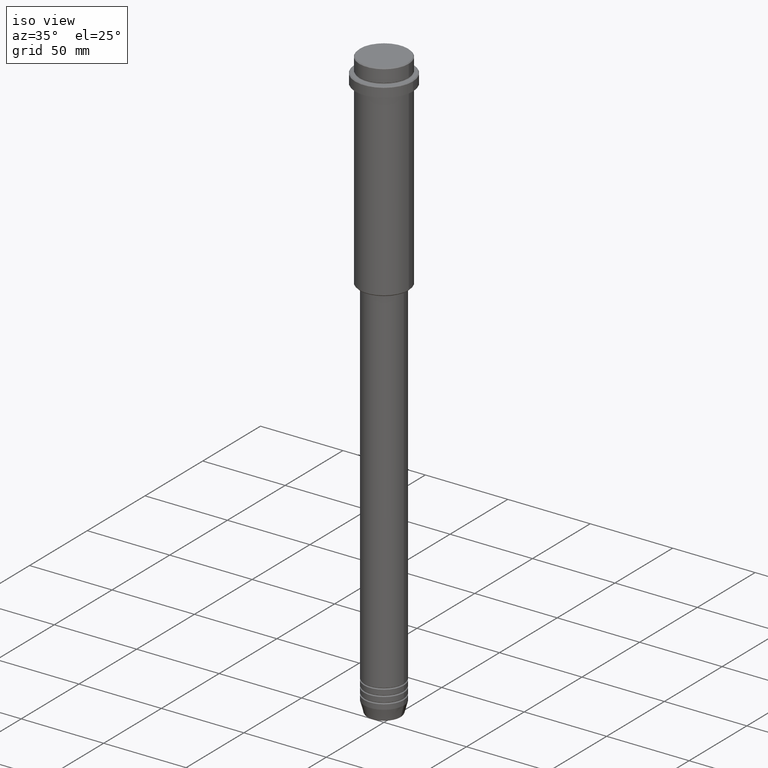
[diagram: clean part render]
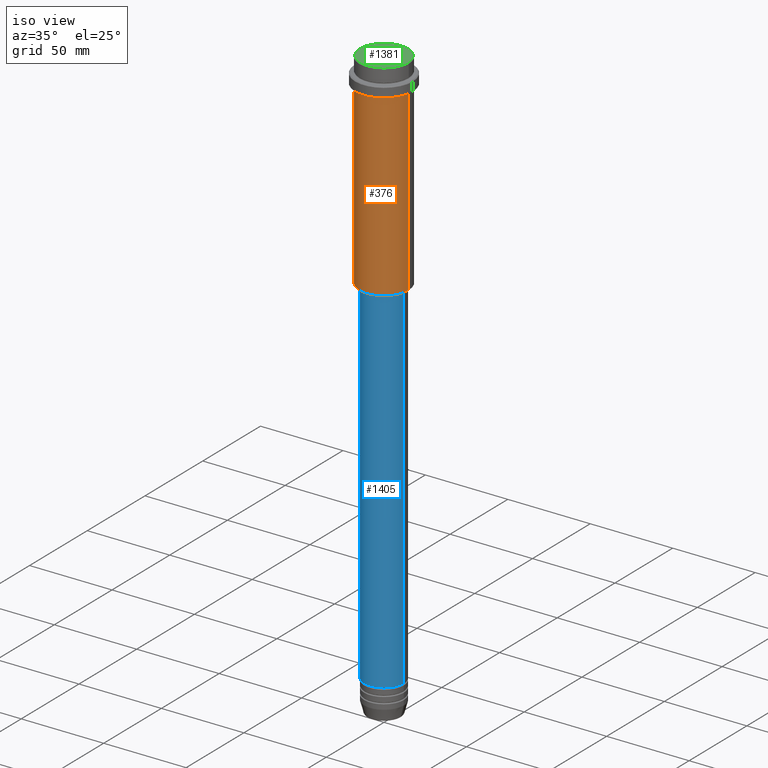
[diagram: same view with three faces highlighted in distinct colors, each labeled with its STEP entity id]
A machine part, iso view with three faces highlighted in distinct colors.
Their STEP definitions:

[orange] entity #376 — the highlighted cylindrical surface (edge-blend (fillet) strip) has radius 15 mm, axis along (-0, -0, 1).
#38 = CARTESIAN_POINT ( 'NONE',  ( 15.00000000000000000, 0.000000000000000000, -124.4999999999999432 ) ) ;
#75 = VECTOR ( 'NONE', #138, 1000.000000000000000 ) ;
#137 = DIRECTION ( 'NONE',  ( -1.000000000000000000, 0.000000000000000000, 0.000000000000000000 ) ) ;
#138 = DIRECTION ( 'NONE',  ( -0.000000000000000000, -0.000000000000000000, 1.000000000000000000 ) ) ;
#169 = VERTEX_POINT ( 'NONE', #209 ) ;
#209 = CARTESIAN_POINT ( 'NONE',  ( -15.00000000000000000, 1.836970198721029589E-15, -124.4999999999999432 ) ) ;
#228 = VERTEX_POINT ( 'NONE', #1411 ) ;
#255 = CARTESIAN_POINT ( 'NONE',  ( 0.000000000000000000, 0.000000000000000000, 0.000000000000000000 ) ) ;
#302 = AXIS2_PLACEMENT_3D ( 'NONE', #1271, #1376, #514 ) ;
#328 = AXIS2_PLACEMENT_3D ( 'NONE', #255, #1010, #362 ) ;
#362 = DIRECTION ( 'NONE',  ( 1.000000000000000000, 0.000000000000000000, 0.000000000000000000 ) ) ;
#376 = ADVANCED_FACE ( 'NONE', ( #892 ), #676, .T. ) ;
#492 = ORIENTED_EDGE ( 'NONE', *, *, #1340, .F. ) ;
#514 = DIRECTION ( 'NONE',  ( 1.000000000000000000, 0.000000000000000000, 0.000000000000000000 ) ) ;
#631 = CIRCLE ( 'NONE', #1068, 15.00000000000000000 ) ;
#676 = CYLINDRICAL_SURFACE ( 'NONE', #328, 15.00000000000000000 ) ;
#695 = ORIENTED_EDGE ( 'NONE', *, *, #1218, .T. ) ;
#827 = LINE ( 'NONE', #930, #1236 ) ;
#863 = EDGE_CURVE ( 'NONE', #169, #1043, #1115, .T. ) ;
#892 = FACE_OUTER_BOUND ( 'NONE', #1053, .T. ) ;
#904 = CARTESIAN_POINT ( 'NONE',  ( -15.00000000000000000, 1.836970198721029589E-15, 0.000000000000000000 ) ) ;
#910 = CARTESIAN_POINT ( 'NONE',  ( 0.000000000000000000, 0.000000000000000000, -124.4999999999999432 ) ) ;
#930 = CARTESIAN_POINT ( 'NONE',  ( 15.00000000000000000, 0.000000000000000000, 0.000000000000000000 ) ) ;
#946 = EDGE_CURVE ( 'NONE', #1216, #228, #827, .T. ) ;
#986 = CARTESIAN_POINT ( 'NONE',  ( -15.00000000000000355, 1.836970198721029983E-15, -16.00000000000000000 ) ) ;
#1010 = DIRECTION ( 'NONE',  ( -0.000000000000000000, -0.000000000000000000, 1.000000000000000000 ) ) ;
#1043 = VERTEX_POINT ( 'NONE', #986 ) ;
#1053 = EDGE_LOOP ( 'NONE', ( #1314, #695, #1144, #492 ) ) ;
#1068 = AXIS2_PLACEMENT_3D ( 'NONE', #910, #1330, #137 ) ;
#1115 = LINE ( 'NONE', #904, #75 ) ;
#1137 = CIRCLE ( 'NONE', #302, 15.00000000000000178 ) ;
#1144 = ORIENTED_EDGE ( 'NONE', *, *, #946, .T. ) ;
#1216 = VERTEX_POINT ( 'NONE', #38 ) ;
#1218 = EDGE_CURVE ( 'NONE', #169, #1216, #631, .T. ) ;
#1236 = VECTOR ( 'NONE', #1357, 1000.000000000000000 ) ;
#1271 = CARTESIAN_POINT ( 'NONE',  ( 0.000000000000000000, 0.000000000000000000, -16.00000000000000000 ) ) ;
#1314 = ORIENTED_EDGE ( 'NONE', *, *, #863, .F. ) ;
#1330 = DIRECTION ( 'NONE',  ( -0.000000000000000000, -0.000000000000000000, 1.000000000000000000 ) ) ;
#1340 = EDGE_CURVE ( 'NONE', #1043, #228, #1137, .T. ) ;
#1357 = DIRECTION ( 'NONE',  ( -0.000000000000000000, -0.000000000000000000, 1.000000000000000000 ) ) ;
#1376 = DIRECTION ( 'NONE',  ( -0.000000000000000000, -0.000000000000000000, 1.000000000000000000 ) ) ;
#1411 = CARTESIAN_POINT ( 'NONE',  ( 15.00000000000000178, 0.000000000000000000, -16.00000000000000000 ) ) ;

[blue] entity #1405 — the highlighted cylindrical surface (edge-blend (fillet) strip) has radius 12 mm, axis along (-0, -0, 1).
#22 = AXIS2_PLACEMENT_3D ( 'NONE', #1295, #325, #751 ) ;
#48 = VERTEX_POINT ( 'NONE', #69 ) ;
#69 = CARTESIAN_POINT ( 'NONE',  ( 11.99999999999999822, 0.000000000000000000, -125.9999999999999147 ) ) ;
#70 = DIRECTION ( 'NONE',  ( 1.000000000000000000, 0.000000000000000000, 0.000000000000000000 ) ) ;
#82 = CYLINDRICAL_SURFACE ( 'NONE', #344, 12.00000000000000000 ) ;
#94 = CARTESIAN_POINT ( 'NONE',  ( 12.00000000000000000, 0.000000000000000000, 0.000000000000000000 ) ) ;
#119 = VECTOR ( 'NONE', #494, 1000.000000000000000 ) ;
#144 = CARTESIAN_POINT ( 'NONE',  ( -12.00000000000000000, 1.469576158976823947E-15, -340.9999999999998863 ) ) ;
#159 = EDGE_CURVE ( 'NONE', #782, #48, #756, .T. ) ;
#174 = DIRECTION ( 'NONE',  ( -0.000000000000000000, -0.000000000000000000, 1.000000000000000000 ) ) ;
#262 = AXIS2_PLACEMENT_3D ( 'NONE', #1325, #913, #576 ) ;
#304 = ORIENTED_EDGE ( 'NONE', *, *, #159, .T. ) ;
#325 = DIRECTION ( 'NONE',  ( -0.000000000000000000, -0.000000000000000000, 1.000000000000000000 ) ) ;
#344 = AXIS2_PLACEMENT_3D ( 'NONE', #928, #174, #70 ) ;
#353 = CARTESIAN_POINT ( 'NONE',  ( -12.00000000000000000, 1.469576158976823947E-15, 0.000000000000000000 ) ) ;
#439 = EDGE_CURVE ( 'NONE', #1174, #821, #1328, .T. ) ;
#474 = CARTESIAN_POINT ( 'NONE',  ( -11.99999999999999822, 1.469576158976823750E-15, -125.9999999999999147 ) ) ;
#494 = DIRECTION ( 'NONE',  ( -0.000000000000000000, -0.000000000000000000, 1.000000000000000000 ) ) ;
#576 = DIRECTION ( 'NONE',  ( 1.000000000000000000, 0.000000000000000000, 0.000000000000000000 ) ) ;
#684 = CIRCLE ( 'NONE', #262, 12.00000000000000000 ) ;
#709 = EDGE_CURVE ( 'NONE', #821, #48, #1308, .T. ) ;
#751 = DIRECTION ( 'NONE',  ( 1.000000000000000000, 0.000000000000000000, 0.000000000000000000 ) ) ;
#756 = LINE ( 'NONE', #94, #1326 ) ;
#782 = VERTEX_POINT ( 'NONE', #1339 ) ;
#793 = ORIENTED_EDGE ( 'NONE', *, *, #439, .F. ) ;
#821 = VERTEX_POINT ( 'NONE', #474 ) ;
#830 = EDGE_CURVE ( 'NONE', #1174, #782, #684, .T. ) ;
#913 = DIRECTION ( 'NONE',  ( -0.000000000000000000, -0.000000000000000000, 1.000000000000000000 ) ) ;
#928 = CARTESIAN_POINT ( 'NONE',  ( 0.000000000000000000, 0.000000000000000000, 0.000000000000000000 ) ) ;
#963 = DIRECTION ( 'NONE',  ( -0.000000000000000000, -0.000000000000000000, 1.000000000000000000 ) ) ;
#1059 = FACE_OUTER_BOUND ( 'NONE', #1061, .T. ) ;
#1061 = EDGE_LOOP ( 'NONE', ( #793, #1304, #304, #1265 ) ) ;
#1174 = VERTEX_POINT ( 'NONE', #144 ) ;
#1265 = ORIENTED_EDGE ( 'NONE', *, *, #709, .F. ) ;
#1295 = CARTESIAN_POINT ( 'NONE',  ( 0.000000000000000000, 0.000000000000000000, -125.9999999999999147 ) ) ;
#1304 = ORIENTED_EDGE ( 'NONE', *, *, #830, .T. ) ;
#1308 = CIRCLE ( 'NONE', #22, 11.99999999999999822 ) ;
#1325 = CARTESIAN_POINT ( 'NONE',  ( 0.000000000000000000, 0.000000000000000000, -340.9999999999998863 ) ) ;
#1326 = VECTOR ( 'NONE', #963, 1000.000000000000000 ) ;
#1328 = LINE ( 'NONE', #353, #119 ) ;
#1339 = CARTESIAN_POINT ( 'NONE',  ( 12.00000000000000000, 0.000000000000000000, -340.9999999999998863 ) ) ;
#1405 = ADVANCED_FACE ( 'NONE', ( #1059 ), #82, .T. ) ;

[green] entity #1381 — the highlighted planar face has unit normal (0, -0, 1).
#25 = DIRECTION ( 'NONE',  ( 1.000000000000000000, 0.000000000000000000, 0.000000000000000000 ) ) ;
#155 = CIRCLE ( 'NONE', #520, 14.50000000000006750 ) ;
#162 = CARTESIAN_POINT ( 'NONE',  ( -14.50000000000006750, 0.000000000000000000, 0.000000000000000000 ) ) ;
#179 = DIRECTION ( 'NONE',  ( 1.000000000000000000, 0.000000000000000000, 0.000000000000000000 ) ) ;
#237 = ORIENTED_EDGE ( 'NONE', *, *, #1191, .T. ) ;
#454 = EDGE_LOOP ( 'NONE', ( #237, #944 ) ) ;
#482 = VERTEX_POINT ( 'NONE', #162 ) ;
#503 = CARTESIAN_POINT ( 'NONE',  ( 14.50000000000006750, 1.806354028742349746E-15, 0.000000000000000000 ) ) ;
#520 = AXIS2_PLACEMENT_3D ( 'NONE', #1016, #1113, #25 ) ;
#545 = VERTEX_POINT ( 'NONE', #503 ) ;
#584 = CIRCLE ( 'NONE', #725, 14.50000000000006750 ) ;
#590 = FACE_OUTER_BOUND ( 'NONE', #454, .T. ) ;
#610 = DIRECTION ( 'NONE',  ( 1.000000000000000000, 0.000000000000000000, 0.000000000000000000 ) ) ;
#618 = DIRECTION ( 'NONE',  ( 0.000000000000000000, -0.000000000000000000, 1.000000000000000000 ) ) ;
#725 = AXIS2_PLACEMENT_3D ( 'NONE', #1026, #812, #179 ) ;
#812 = DIRECTION ( 'NONE',  ( -0.000000000000000000, -0.000000000000000000, 1.000000000000000000 ) ) ;
#944 = ORIENTED_EDGE ( 'NONE', *, *, #1307, .T. ) ;
#1016 = CARTESIAN_POINT ( 'NONE',  ( 0.000000000000000000, 0.000000000000000000, 0.000000000000000000 ) ) ;
#1026 = CARTESIAN_POINT ( 'NONE',  ( 0.000000000000000000, 0.000000000000000000, 0.000000000000000000 ) ) ;
#1113 = DIRECTION ( 'NONE',  ( -0.000000000000000000, -0.000000000000000000, 1.000000000000000000 ) ) ;
#1151 = PLANE ( 'NONE',  #1388 ) ;
#1191 = EDGE_CURVE ( 'NONE', #482, #545, #155, .T. ) ;
#1247 = CARTESIAN_POINT ( 'NONE',  ( 0.000000000000000000, 0.000000000000000000, 0.000000000000000000 ) ) ;
#1307 = EDGE_CURVE ( 'NONE', #545, #482, #584, .T. ) ;
#1381 = ADVANCED_FACE ( 'NONE', ( #590 ), #1151, .T. ) ;
#1388 = AXIS2_PLACEMENT_3D ( 'NONE', #1247, #618, #610 ) ;